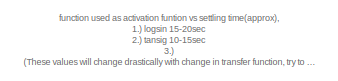
[diagram: root canvas - part 1/4, top left region]
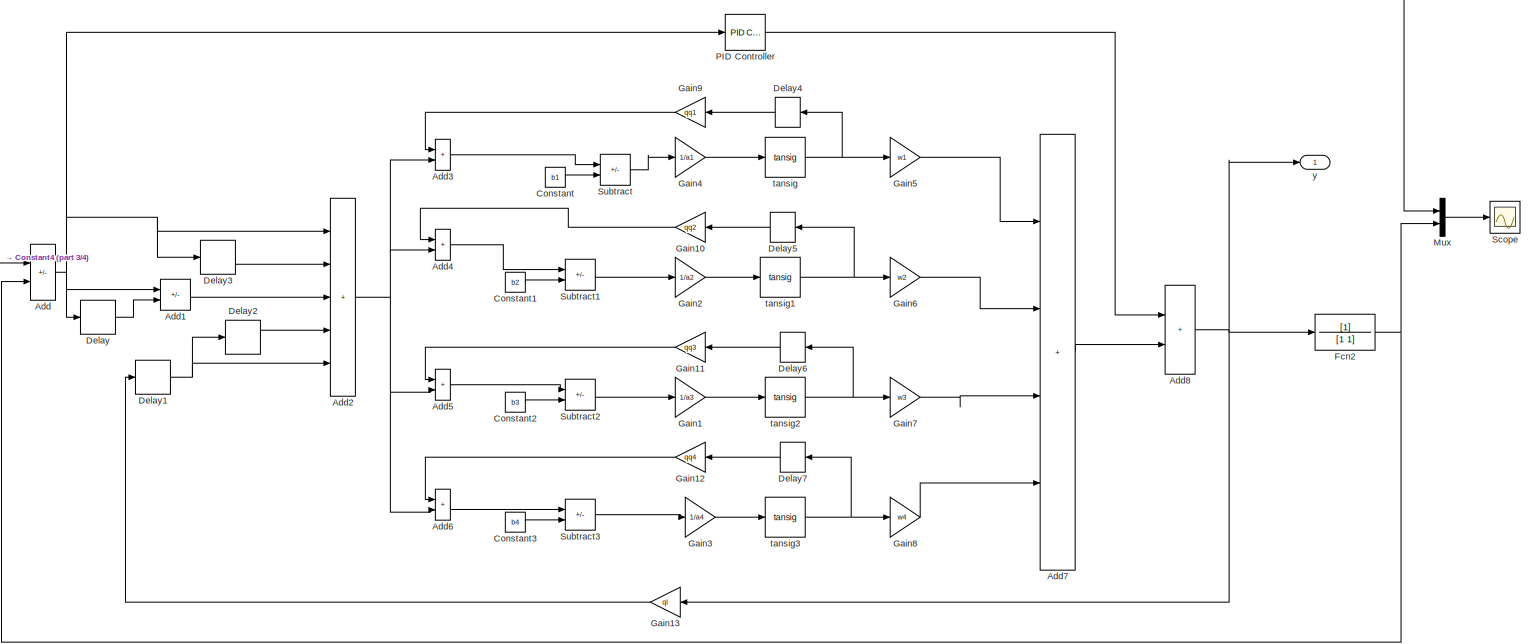
[diagram: root canvas - part 2/4, most of the canvas]
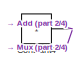
[diagram: root canvas - part 3/4, middle left region]
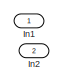
[diagram: root canvas - part 4/4, middle left region]
MODEL slx_a9fd6089a573
KIND model
CONFIG AbsTol = auto
CONFIG EnableMultiTasking = off
CONFIG FixedStep = auto
CONFIG MaxStep = auto
CONFIG MinStep = auto
CONFIG PreLoadFcn = b1=1\nb2=1\nb3=1\nb4=1\na1=1\na2=1\na3=1\na4=1\nqq1=1\nqq2=1\nqq3=1\nqq4=1\nw1=1\nw2=1\nw3=1\nw4=1\nql=1
CONFIG RelTol = 1e-3
CONFIG SampleTimeConstraint = Unconstrained
CONFIG SolverName = VariableStepAuto
CONFIG StartTime = 0.0
CONFIG StopTime = 30
BLOCK [TransferFcn]  Fcn2
  Denominator = [1 1]
BLOCK [Sum] Add
  IconShape = rectangular
  Inputs = +-
  Ports = [2, 1]
BLOCK [Sum] Add1
  IconShape = rectangular
  Inputs = +-
  Ports = [2, 1]
BLOCK [Sum] Add2
  IconShape = rectangular
  Inputs = +++++
  Ports = [5, 1]
BLOCK [Sum] Add3
  IconShape = rectangular
  Ports = [2, 1]
BLOCK [Sum] Add4
  IconShape = rectangular
  Ports = [2, 1]
BLOCK [Sum] Add5
  IconShape = rectangular
  Ports = [2, 1]
BLOCK [Sum] Add6
  IconShape = rectangular
  Ports = [2, 1]
BLOCK [Sum] Add7
  IconShape = rectangular
  Inputs = ++++
  Ports = [4, 1]
BLOCK [Sum] Add8
  IconShape = rectangular
  Ports = [2, 1]
BLOCK [Constant] Constant
  Value = b1
BLOCK [Constant] Constant1
  Value = b2
BLOCK [Constant] Constant2
  Value = b3
BLOCK [Constant] Constant3
  Value = b4
BLOCK [Constant] Constant4
BLOCK [Delay] Delay
  DelayLength = 1
  InputPortMap = u0
  Ports = [1, 1]
BLOCK [Delay] Delay1
  DelayLength = 1
  InputPortMap = u0
  Ports = [1, 1]
BLOCK [Delay] Delay2
  DelayLength = 1
  InputPortMap = u0
  Ports = [1, 1]
BLOCK [Delay] Delay3
  DelayLength = 1
  InputPortMap = u0
  Ports = [1, 1]
BLOCK [Delay] Delay4
  DelayLength = 1
  InputPortMap = u0
  Ports = [1, 1]
BLOCK [Delay] Delay5
  DelayLength = 1
  InputPortMap = u0
  Ports = [1, 1]
BLOCK [Delay] Delay6
  DelayLength = 1
  InputPortMap = u0
  Ports = [1, 1]
BLOCK [Delay] Delay7
  DelayLength = 1
  InputPortMap = u0
  Ports = [1, 1]
BLOCK [Gain] Gain1
  Gain = 1/a3
BLOCK [Gain] Gain10
  Gain = qq2
BLOCK [Gain] Gain11
  Gain = qq3
BLOCK [Gain] Gain12
  Gain = qq4
BLOCK [Gain] Gain13
  Gain = ql
BLOCK [Gain] Gain2
  Gain = 1/a2
BLOCK [Gain] Gain3
  Gain = 1/a4
BLOCK [Gain] Gain4
  Gain = 1/a1
BLOCK [Gain] Gain5
  Gain = w1
BLOCK [Gain] Gain6
  Gain = w2
BLOCK [Gain] Gain7
  Gain = w3
BLOCK [Gain] Gain8
  Gain = w4
BLOCK [Gain] Gain9
  Gain = qq1
BLOCK [Inport] In1
BLOCK [Inport] In2
  Port = 2
BLOCK [Mux] Mux
  DisplayOption = bar
  Inputs = 2
  Ports = [2, 1]
BLOCK [Reference] PID Controller  REF=pid_lib/PID Controller
  Ports = [1, 1]
  SourceBlock = pid_lib/PID Controller
  SourceProductBaseCode = SL
  SourceType = PID 1dof
BLOCK [Scope] Scope
  Floating = off
  NumInputPorts = 1
  Ports = [1]
  ScopeSpecificationString = Simulink.scopes.TimeScopeBlockCfg('CurrentConfiguration', extmgr.ConfigurationSet(extmgr.Configuration('Core','General UI',true),extmgr.Configuration('Core','Source UI',true),extmgr.Configuration('Sources','WiredSimulink',true),extmgr.Configuration('Visuals','Time Domain',true,'SerializedDisplays',{struct('MinYLimReal','-0.27915','MaxYLimReal','2.51238','YLabelReal','','MinYLimMag','0.00000','MaxY...<+1392ch>
BLOCK [Sum] Subtract
  IconShape = rectangular
  Inputs = +-
  Ports = [2, 1]
BLOCK [Sum] Subtract1
  IconShape = rectangular
  Inputs = +-
  Ports = [2, 1]
BLOCK [Sum] Subtract2
  IconShape = rectangular
  Inputs = +-
  Ports = [2, 1]
BLOCK [Sum] Subtract3
  IconShape = rectangular
  Inputs = +-
  Ports = [2, 1]
BLOCK [Reference] tansig  REF=neural/Transfer Functions/tansig
  Ports = [1, 1]
  SourceBlock = neural/Transfer Functions/tansig
  SourceProductBaseCode = NN
  SourceType = TANSIG
BLOCK [Reference] tansig1  REF=neural/Transfer Functions/tansig
  Ports = [1, 1]
  SourceBlock = neural/Transfer Functions/tansig
  SourceProductBaseCode = NN
  SourceType = TANSIG
BLOCK [Reference] tansig2  REF=neural/Transfer Functions/tansig
  Ports = [1, 1]
  SourceBlock = neural/Transfer Functions/tansig
  SourceProductBaseCode = NN
  SourceType = TANSIG
BLOCK [Reference] tansig3  REF=neural/Transfer Functions/tansig
  Ports = [1, 1]
  SourceBlock = neural/Transfer Functions/tansig
  SourceProductBaseCode = NN
  SourceType = TANSIG
BLOCK [Outport] y
ANNOTATION (root): function used as activation funtion vs settling time(approx), 1.) logsin 15-20sec 2.) tansig 10-15sec 3.) (These values will change drastically with change in transfer function, try to add the correct transfer function corresponding to the LIM first.)
NET  Fcn2:1 -> Add:2, Mux:2
LINE Add1:1 -> Add2:3
NET Add2:1 -> Add3:2, Add4:2, Add5:2, Add6:2
LINE Add3:1 -> Subtract:1
LINE Add4:1 -> Subtract1:1
LINE Add5:1 -> Subtract2:1
LINE Add6:1 -> Subtract3:1
LINE Add7:1 -> Add8:2
NET Add8:1 ->  Fcn2:1, Gain13:1, y:1
NET Add:1 -> Add1:1, Add2:1, Delay3:1, Delay:1, PID Controller:1
LINE Constant1:1 -> Subtract1:2
LINE Constant2:1 -> Subtract2:2
LINE Constant3:1 -> Subtract3:2
NET Constant4:1 -> Add:1, Mux:1
LINE Constant:1 -> Subtract:2
NET Delay1:1 -> Add2:5, Delay2:1
LINE Delay2:1 -> Add2:4
LINE Delay3:1 -> Add2:2
LINE Delay4:1 -> Gain9:1
LINE Delay5:1 -> Gain10:1
LINE Delay6:1 -> Gain11:1
LINE Delay7:1 -> Gain12:1
LINE Delay:1 -> Add1:2
LINE Gain10:1 -> Add4:1
LINE Gain11:1 -> Add5:1
LINE Gain12:1 -> Add6:1
LINE Gain13:1 -> Delay1:1
LINE Gain1:1 -> tansig2:1
LINE Gain2:1 -> tansig1:1
LINE Gain3:1 -> tansig3:1
LINE Gain4:1 -> tansig:1
LINE Gain5:1 -> Add7:1
LINE Gain6:1 -> Add7:2
LINE Gain7:1 -> Add7:3
LINE Gain8:1 -> Add7:4
LINE Gain9:1 -> Add3:1
LINE Mux:1 -> Scope:1
LINE PID Controller:1 -> Add8:1
LINE Subtract1:1 -> Gain2:1
LINE Subtract2:1 -> Gain1:1
LINE Subtract3:1 -> Gain3:1
LINE Subtract:1 -> Gain4:1
NET tansig1:1 -> Delay5:1, Gain6:1
NET tansig2:1 -> Delay6:1, Gain7:1
NET tansig3:1 -> Delay7:1, Gain8:1
NET tansig:1 -> Delay4:1, Gain5:1
note: NET lines group one-source signal fan-out (src -> all destinations, sorted); 1:1 wires keep LINE
